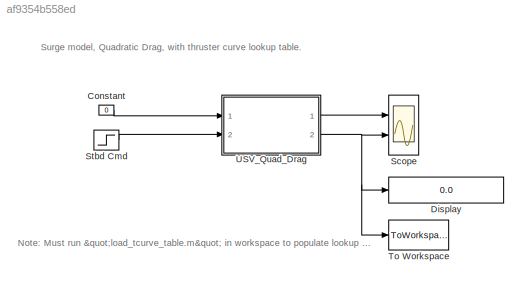
MODEL slx_af9354b558ed
KIND model
CONFIG AbsTol = auto
CONFIG FixedStep = auto
CONFIG MaxStep = auto
CONFIG MinStep = auto
CONFIG RelTol = 1e-3
CONFIG SampleTimeConstraint = Unconstrained
CONFIG Solver = VariableStepAuto
CONFIG SolverMode = Auto
CONFIG SolverName = VariableStepAuto
CONFIG StartTime = 0.0
CONFIG StopTime = 200
BLOCK [Constant] Constant
  Value = 0
BLOCK [Display] Display
  Decimation = 1
  Format = long
  Ports = [1]
BLOCK [Scope] Scope
  NumInputPorts = 2
  Ports = [2]
  ScopeSpecificationString = Simulink.scopes.TimeScopeBlockCfg('CurrentConfiguration', extmgr.ConfigurationSet(extmgr.Configuration('Core','General UI',true),extmgr.Configuration('Core','Source UI',true),extmgr.Configuration('Sources','WiredSimulink',true),extmgr.Configuration('Visuals','Time Domain',true,'SerializedDisplays',{struct('MinYLimReal','-0.137','MaxYLimReal','1.23298','YLabelReal','','MinYLimMag','0.00000','MaxYLi...<+1388ch>
BLOCK [Step] Stbd Cmd
  SampleTime = 0
BLOCK [ToWorkspace] To Workspace
  FixptAsFi = on
  MaxDataPoints = inf
  Ports = [1]
  SampleTime = -1
  Save2DSignal = 3-D array (concatenate along third dimension)
  SaveFormat = Timeseries
  VariableName = yaw_rate
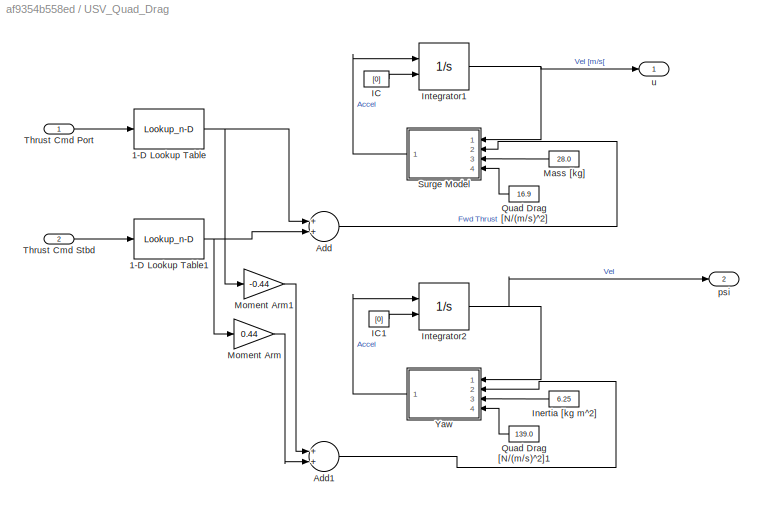
BLOCK [SubSystem] USV_Quad_Drag
  Ports = [2, 2]
  RequestExecContextInheritance = off
  Variant = off
BLOCK [Lookup_n-D] USV_Quad_Drag/1-D Lookup Table
  BreakpointsForDimension1 = breakpoints1
  ExtrapMethod = Clip
  InternalRulePriority = Speed
  NumberOfTableDimensions = 1
  Ports = [1, 1]
  RndMeth = Simplest
  Table = table_data
  UseLastTableValue = on
BLOCK [Lookup_n-D] USV_Quad_Drag/1-D Lookup Table1
  BreakpointsForDimension1 = breakpoints1
  ExtrapMethod = Clip
  InternalRulePriority = Speed
  NumberOfTableDimensions = 1
  Ports = [1, 1]
  RndMeth = Simplest
  Table = table_data
  UseLastTableValue = on
BLOCK [Sum] USV_Quad_Drag/Add
  InputSameDT = off
  OutDataTypeStr = Inherit: Inherit via internal rule
  Ports = [2, 1]
  SaturateOnIntegerOverflow = off
BLOCK [Sum] USV_Quad_Drag/Add1
  InputSameDT = off
  OutDataTypeStr = Inherit: Inherit via internal rule
  Ports = [2, 1]
  SaturateOnIntegerOverflow = off
BLOCK [Constant] USV_Quad_Drag/IC
  Value = [0]
BLOCK [Constant] USV_Quad_Drag/IC1
  Value = [0]
BLOCK [Constant] USV_Quad_Drag/Inertia [kg m^2]
  Value = 6.25
BLOCK [Integrator] USV_Quad_Drag/Integrator1
  InitialConditionSource = external
  Ports = [2, 1]
BLOCK [Integrator] USV_Quad_Drag/Integrator2
  InitialConditionSource = external
  Ports = [2, 1]
BLOCK [Constant] USV_Quad_Drag/Mass [kg]
  Value = 28.0
BLOCK [Gain] USV_Quad_Drag/Moment Arm
  Gain = 0.44
  OutDataTypeStr = Inherit: Inherit via internal rule
  ParamDataTypeStr = Inherit: Inherit via internal rule
  SaturateOnIntegerOverflow = off
BLOCK [Gain] USV_Quad_Drag/Moment Arm1
  Gain = -0.44
  OutDataTypeStr = Inherit: Inherit via internal rule
  ParamDataTypeStr = Inherit: Inherit via internal rule
  SaturateOnIntegerOverflow = off
BLOCK [Constant] USV_Quad_Drag/Quad Drag [N//(m//s)^2]
  Value = 16.9
BLOCK [Constant] USV_Quad_Drag/Quad Drag [N//(m//s)^2]1
  Value = 139.0
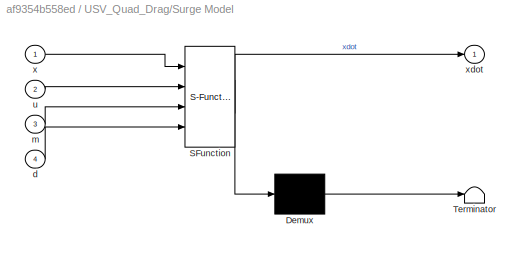
BLOCK [SubSystem] USV_Quad_Drag/Surge Model
  ErrorFcn = Stateflow.Translate.translate
  PermitHierarchicalResolution = ExplicitOnly
  Ports = [4, 1]
  RequestExecContextInheritance = off
  SFBlockType = MATLAB Function
  TreatAsAtomicUnit = on
  Variant = off
BLOCK [Demux] USV_Quad_Drag/Surge Model/ Demux 
  Outputs = 1
  Ports = [1, 1]
BLOCK [S-Function] USV_Quad_Drag/Surge Model/ SFunction 
  EnableBusSupport = on
  FunctionName = sf_sfun
  PortCounts = [4 2]
  Ports = [4, 2]
  SFunctionDeploymentMode = off
  Tag = Stateflow S-Function mv_usv_2dof_quad_drag_ssmethod_tcurve 2
BLOCK [Terminator] USV_Quad_Drag/Surge Model/ Terminator 
BLOCK [Inport] USV_Quad_Drag/Surge Model/d
  IconDisplay = Port number
  Port = 4
BLOCK [Inport] USV_Quad_Drag/Surge Model/m
  IconDisplay = Port number
  Port = 3
BLOCK [Inport] USV_Quad_Drag/Surge Model/u
  IconDisplay = Port number
  Port = 2
BLOCK [Inport] USV_Quad_Drag/Surge Model/x
  IconDisplay = Port number
BLOCK [Outport] USV_Quad_Drag/Surge Model/xdot
  IconDisplay = Port number
BLOCK [Inport] USV_Quad_Drag/Thrust Cmd Port
  IconDisplay = Port number
BLOCK [Inport] USV_Quad_Drag/Thrust Cmd Stbd
  IconDisplay = Port number
  Port = 2
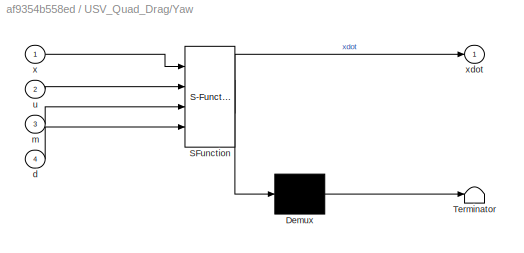
BLOCK [SubSystem] USV_Quad_Drag/Yaw
  ErrorFcn = Stateflow.Translate.translate
  PermitHierarchicalResolution = ExplicitOnly
  Ports = [4, 1]
  RequestExecContextInheritance = off
  SFBlockType = MATLAB Function
  TreatAsAtomicUnit = on
  Variant = off
BLOCK [Demux] USV_Quad_Drag/Yaw/ Demux 
  Outputs = 1
  Ports = [1, 1]
BLOCK [S-Function] USV_Quad_Drag/Yaw/ SFunction 
  EnableBusSupport = on
  FunctionName = sf_sfun
  PortCounts = [4 2]
  Ports = [4, 2]
  SFunctionDeploymentMode = off
  Tag = Stateflow S-Function mv_usv_2dof_quad_drag_ssmethod_tcurve 1
BLOCK [Terminator] USV_Quad_Drag/Yaw/ Terminator 
BLOCK [Inport] USV_Quad_Drag/Yaw/d
  IconDisplay = Port number
  Port = 4
BLOCK [Inport] USV_Quad_Drag/Yaw/m
  IconDisplay = Port number
  Port = 3
BLOCK [Inport] USV_Quad_Drag/Yaw/u
  IconDisplay = Port number
  Port = 2
BLOCK [Inport] USV_Quad_Drag/Yaw/x
  IconDisplay = Port number
BLOCK [Outport] USV_Quad_Drag/Yaw/xdot
  IconDisplay = Port number
BLOCK [Outport] USV_Quad_Drag/psi
  IconDisplay = Port number
  Port = 2
BLOCK [Outport] USV_Quad_Drag/u
  IconDisplay = Port number
ANNOTATION (root): Note: Must run "load_tcurve_table.m" in workspace to populate lookup table!
ANNOTATION (root): Surge model, Quadratic Drag, with thruster curve lookup table.
LINE Constant:1 -> USV_Quad_Drag:1
LINE Stbd Cmd:1 -> USV_Quad_Drag:2
NET USV_Quad_Drag/1-D Lookup Table1:1 -> USV_Quad_Drag/Add:2, USV_Quad_Drag/Moment Arm:1
NET USV_Quad_Drag/1-D Lookup Table:1 -> USV_Quad_Drag/Add:1, USV_Quad_Drag/Moment Arm1:1
LINE USV_Quad_Drag/Add1:1 -> USV_Quad_Drag/Yaw:2
LINE USV_Quad_Drag/Add:1 -> USV_Quad_Drag/Surge Model:2
LINE USV_Quad_Drag/IC1:1 -> USV_Quad_Drag/Integrator2:2
LINE USV_Quad_Drag/IC:1 -> USV_Quad_Drag/Integrator1:2
LINE USV_Quad_Drag/Inertia [kg m^2]:1 -> USV_Quad_Drag/Yaw:3
NET USV_Quad_Drag/Integrator1:1 -> USV_Quad_Drag/Surge Model:1, USV_Quad_Drag/u:1
NET USV_Quad_Drag/Integrator2:1 -> USV_Quad_Drag/Yaw:1, USV_Quad_Drag/psi:1
LINE USV_Quad_Drag/Mass [kg]:1 -> USV_Quad_Drag/Surge Model:3
LINE USV_Quad_Drag/Moment Arm1:1 -> USV_Quad_Drag/Add1:1
LINE USV_Quad_Drag/Moment Arm:1 -> USV_Quad_Drag/Add1:2
LINE USV_Quad_Drag/Quad Drag [N//(m//s)^2]1:1 -> USV_Quad_Drag/Yaw:4
LINE USV_Quad_Drag/Quad Drag [N//(m//s)^2]:1 -> USV_Quad_Drag/Surge Model:4
LINE USV_Quad_Drag/Surge Model:1 -> USV_Quad_Drag/Integrator1:1
LINE USV_Quad_Drag/Thrust Cmd Port:1 -> USV_Quad_Drag/1-D Lookup Table:1
LINE USV_Quad_Drag/Thrust Cmd Stbd:1 -> USV_Quad_Drag/1-D Lookup Table1:1
LINE USV_Quad_Drag/Yaw:1 -> USV_Quad_Drag/Integrator2:1
LINE USV_Quad_Drag:1 -> Scope:1
NET USV_Quad_Drag:2 -> Display:1, Scope:2, To Workspace:1
note: NET lines group one-source signal fan-out (src -> all destinations, sorted); 1:1 wires keep LINE
CHART USV_Quad_Drag/Yaw states=1 transitions=1
  STATE_LABEL 'eML_blk_kernel()'
  STATE_LABEL 'SCRIPT:\nfunction xdot = fcn(x,u,m,d)\n%#codegen\n\n% x - state of the system.  surge velocity.\n% u - input. thrust force\n% Model parameters\nm = m; %28.0;   % Mass [kg]\nd = d; %16.9;  % Quadratic drag coefficient [N/(m/s)^2]\n\nxdot = 1/m*(-d*abs(x)*x+u);\n'
CHART USV_Quad_Drag/Surge Model states=1 transitions=1
  STATE_LABEL 'eML_blk_kernel()'
  STATE_LABEL 'SCRIPT:\nfunction xdot = fcn(x,u,m,d)\n%#codegen\n\n% x - state of the system.  surge velocity.\n% u - input. thrust force\n% Model parameters\nm = m; %28.0;   % Mass [kg]\nd = d; %16.9;  % Quadratic drag coefficient [N/(m/s)^2]\n\nxdot = 1/m*(-d*abs(x)*x+u);\n'
